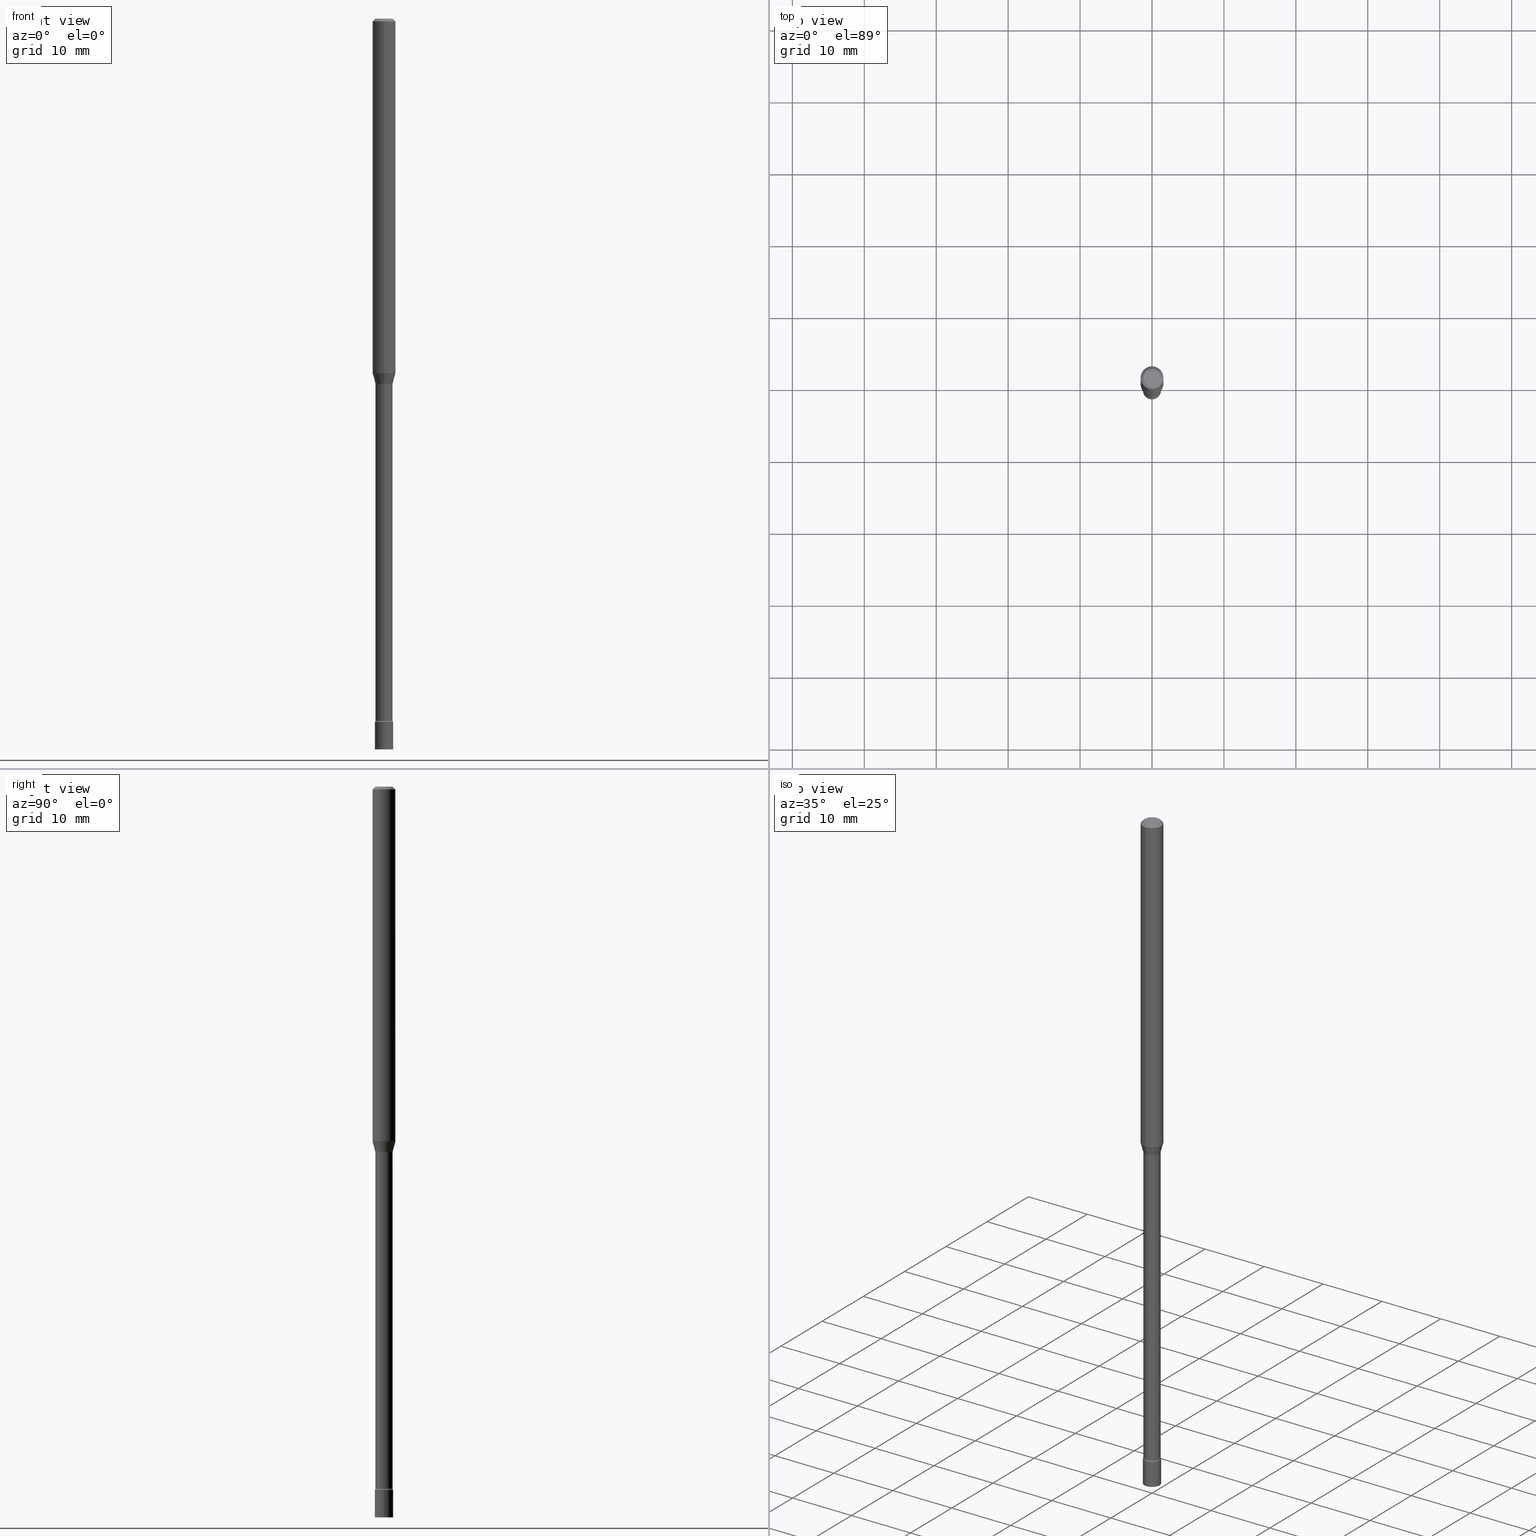
[diagram: canonical four-view strip — front | top / right | iso, engineering-drawing reading convention]
A machine part, canonical four-view strip (front | top / right | iso — engineering-drawing reading convention). The complete STEP part file that produces these views, byte-faithful:
ISO-10303-21;
HEADER;
FILE_DESCRIPTION (( 'STEP AP203' ),
    '1' );
FILE_NAME ('03666.STEP',
    '2024-03-08T22:27:52',
    ( '' ),
    ( '' ),
    'SwSTEP 2.0',
    'SolidWorks 2023',
    '' );
FILE_SCHEMA (( 'CONFIG_CONTROL_DESIGN' ));
ENDSEC;

DATA;
#1 = DIRECTION ( 'NONE',  ( -2.445449410952095360E-29, 3.491509113920768834E-15, 1.000000000000000000 ) ) ;
#2 = EDGE_CURVE ( 'NONE', #498, #446, #419, .T. ) ;
#3 = ORIENTED_EDGE ( 'NONE', *, *, #408, .T. ) ;
#4 = DIRECTION ( 'NONE',  ( -6.982962677686267499E-15, -1.000000000000000000, 0.000000000000000000 ) ) ;
#5 = LINE ( 'NONE', #363, #327 ) ;
#6 = AXIS2_PLACEMENT_3D ( 'NONE', #278, #150, #358 ) ;
#7 = CIRCLE ( 'NONE', #103, 0.01500000000000002720 ) ;
#8 = ORIENTED_EDGE ( 'NONE', *, *, #252, .T. ) ;
#9 = PLANE ( 'NONE',  #434 ) ;
#10 = APPROVAL_ROLE ( '' ) ;
#11 = EDGE_LOOP ( 'NONE', ( #416, #277, #3, #82 ) ) ;
#12 = EDGE_CURVE ( 'NONE', #293, #97, #331, .T. ) ;
#13 = ORIENTED_EDGE ( 'NONE', *, *, #423, .F. ) ;
#14 = DATE_TIME_ROLE ( 'classification_date' ) ;
#15 = SECURITY_CLASSIFICATION ( '', '', #202 ) ;
#16 = DIRECTION ( 'NONE',  ( -2.445449410952095360E-29, 3.491509113920768834E-15, 1.000000000000000000 ) ) ;
#17 = DATE_AND_TIME ( #490, #517 ) ;
#18 = EDGE_CURVE ( 'NONE', #374, #164, #30, .T. ) ;
#19 = CARTESIAN_POINT ( 'NONE',  ( -3.317683261006516906E-16, -0.04751111260567088962, -1.998092501787273267 ) ) ;
#20 = TOROIDAL_SURFACE ( 'NONE', #450, 0.06200000000000000649, 0.01500000000000002547 ) ;
#21 = CC_DESIGN_SECURITY_CLASSIFICATION ( #15, ( #464 ) ) ;
#22 = DIRECTION ( 'NONE',  ( 1.000000000000000000, -7.105427357601001070E-15, 4.926315848688681466E-29 ) ) ;
#23 = ORIENTED_EDGE ( 'NONE', *, *, #223, .F. ) ;
#24 = DIRECTION ( 'NONE',  ( 1.000000000000000000, -6.982962677686265922E-15, 4.876176775795935793E-29 ) ) ;
#25 = LINE ( 'NONE', #144, #249 ) ;
#26 = CARTESIAN_POINT ( 'NONE',  ( 0.000000000000000000, 0.000000000000000000, 0.000000000000000000 ) ) ;
#27 = EDGE_CURVE ( 'NONE', #34, #225, #196, .T. ) ;
#28 = DIRECTION ( 'NONE',  ( -6.982962677686265922E-15, -1.000000000000000000, 5.749913744050256141E-15 ) ) ;
#29 = EDGE_CURVE ( 'NONE', #225, #491, #453, .T. ) ;
#30 = CIRCLE ( 'NONE', #505, 0.05000000000000000278 ) ;
#31 = APPROVAL_PERSON_ORGANIZATION ( #137, #506, #373 ) ;
#32 = CARTESIAN_POINT ( 'NONE',  ( -3.281992458512551448E-16, -0.04700000000000009726, 1.641009283542764807E-16 ) ) ;
#33 = DIRECTION ( 'NONE',  ( -1.000000000000000000, 6.982962677686265922E-15, -4.876176775795935793E-29 ) ) ;
#34 = VERTEX_POINT ( 'NONE', #174 ) ;
#35 = CARTESIAN_POINT ( 'NONE',  ( 3.668174116428150344E-31, -5.237263670881164147E-17, -0.01500000000000003067 ) ) ;
#36 = DIRECTION ( 'NONE',  ( -2.445449410952095360E-29, 3.491509113920768834E-15, 1.000000000000000000 ) ) ;
#37 = AXIS2_PLACEMENT_3D ( 'NONE', #438, #40, #155 ) ;
#38 = DIRECTION ( 'NONE',  ( 2.445449410952095360E-29, -3.491509113920768834E-15, -1.000000000000000000 ) ) ;
#39 = DIRECTION ( 'NONE',  ( -2.445449410952095360E-29, 3.491509113920768834E-15, 1.000000000000000000 ) ) ;
#40 = DIRECTION ( 'NONE',  ( -2.445449410952095360E-29, 3.491509113920768834E-15, 1.000000000000000000 ) ) ;
#41 = ORIENTED_EDGE ( 'NONE', *, *, #212, .F. ) ;
#42 =( NAMED_UNIT ( * ) SI_UNIT ( $, .STERADIAN. ) SOLID_ANGLE_UNIT ( ) );
#43 = DIRECTION ( 'NONE',  ( -2.445468806185136597E-29, 3.491481338843145583E-15, 1.000000000000000000 ) ) ;
#44 = PLANE ( 'NONE',  #161 ) ;
#45 = AXIS2_PLACEMENT_3D ( 'NONE', #501, #229, #33 ) ;
#46 = AXIS2_PLACEMENT_3D ( 'NONE', #480, #237, #158 ) ;
#47 = DATE_AND_TIME ( #412, #170 ) ;
#48 = VERTEX_POINT ( 'NONE', #222 ) ;
#49 = DIRECTION ( 'NONE',  ( 1.000000000000000000, 0.000000000000000000, 0.000000000000000000 ) ) ;
#50 = APPROVAL ( #213, 'UNSPECIFIED' ) ;
#51 = AXIS2_PLACEMENT_3D ( 'NONE', #35, #194, #359 ) ;
#52 = CARTESIAN_POINT ( 'NONE',  ( 9.781875224740546387E-29, -1.396592535537258233E-14, -4.000000000000000000 ) ) ;
#53 = CC_DESIGN_PERSON_AND_ORGANIZATION_ASSIGNMENT ( #493, #245, ( #464 ) ) ;
#54 = CARTESIAN_POINT ( 'NONE',  ( 3.375867592983950199E-16, 0.04751111260565694244, -1.998092501787273934 ) ) ;
#55 = CARTESIAN_POINT ( 'NONE',  ( 0.000000000000000000, 0.000000000000000000, 0.000000000000000000 ) ) ;
#56 = ORIENTED_EDGE ( 'NONE', *, *, #18, .F. ) ;
#57 = VERTEX_POINT ( 'NONE', #19 ) ;
#58 = AXIS2_PLACEMENT_3D ( 'NONE', #177, #346, #499 ) ;
#59 = CIRCLE ( 'NONE', #370, 0.04749999999999999362 ) ;
#60 = PRODUCT ( '03666', '03666', '', ( #131 ) ) ;
#61 = DIRECTION ( 'NONE',  ( -2.445449410952095360E-29, 3.491509113920768834E-15, 1.000000000000000000 ) ) ;
#62 = ORIENTED_EDGE ( 'NONE', *, *, #101, .F. ) ;
#63 = DIRECTION ( 'NONE',  ( -2.445449410952095360E-29, 3.491509113920768834E-15, 1.000000000000000000 ) ) ;
#64 = CARTESIAN_POINT ( 'NONE',  ( -3.491481338842193625E-16, -0.05000000000001347811, -3.850000000000000089 ) ) ;
#65 = FACE_OUTER_BOUND ( 'NONE', #211, .T. ) ;
#66 = EDGE_LOOP ( 'NONE', ( #98, #226, #288, #442 ) ) ;
#67 = CARTESIAN_POINT ( 'NONE',  ( 0.05000000000000000278, -1.379135128843042409E-14, -3.850000000000000089 ) ) ;
#68 = AXIS2_PLACEMENT_3D ( 'NONE', #465, #63, #306 ) ;
#69 = AXIS2_PLACEMENT_3D ( 'NONE', #443, #201, #240 ) ;
#70 = FACE_OUTER_BOUND ( 'NONE', #214, .T. ) ;
#71 = EDGE_CURVE ( 'NONE', #129, #429, #146, .T. ) ;
#72 = EDGE_LOOP ( 'NONE', ( #62, #330, #386, #90 ) ) ;
#73 = CARTESIAN_POINT ( 'NONE',  ( 9.415054903812776570E-29, -1.344220315454611233E-14, -3.850000000000000089 ) ) ;
#74 = DIRECTION ( 'NONE',  ( -1.000000000000000000, 6.982962677686265922E-15, -4.883557194083112340E-29 ) ) ;
#75 = CONICAL_SURFACE ( 'NONE', #206, 0.04751111260566391603, 0.2617993877991485197 ) ;
#76 = CARTESIAN_POINT ( 'NONE',  ( 9.393045684557110628E-29, -1.341077982249652369E-14, -3.841000000000000192 ) ) ;
#77 = TOROIDAL_SURFACE ( 'NONE', #301, 0.06200000000000022854, 0.01500000000000003240 ) ;
#78 = EDGE_CURVE ( 'NONE', #498, #97, #248, .T. ) ;
#79 = FACE_OUTER_BOUND ( 'NONE', #182, .T. ) ;
#80 = ORIENTED_EDGE ( 'NONE', *, *, #78, .F. ) ;
#81 = CALENDAR_DATE ( 2024, 8, 3 ) ;
#82 = ORIENTED_EDGE ( 'NONE', *, *, #188, .T. ) ;
#83 = PRODUCT_DEFINITION_SHAPE ( 'NONE', 'NONE',  #209 ) ;
#84 = VECTOR ( 'NONE', #243, 39.37007874015748143 ) ;
#85 = ADVANCED_FACE ( 'NONE', ( #268 ), #462, .T. ) ;
#86 = ORIENTED_EDGE ( 'NONE', *, *, #425, .F. ) ;
#87 = PERSON_AND_ORGANIZATION ( #349, #96 ) ;
#88 = EDGE_LOOP ( 'NONE', ( #484, #125, #168, #140 ) ) ;
#89 = ADVANCED_FACE ( 'NONE', ( #65 ), #75, .T. ) ;
#90 = ORIENTED_EDGE ( 'NONE', *, *, #461, .F. ) ;
#91 = ORIENTED_EDGE ( 'NONE', *, *, #402, .F. ) ;
#92 = APPROVAL_STATUS ( 'not_yet_approved' ) ;
#93 = VECTOR ( 'NONE', #511, 39.37007874015748143 ) ;
#94 = AXIS2_PLACEMENT_3D ( 'NONE', #320, #43, #398 ) ;
#95 = ADVANCED_FACE ( 'NONE', ( #70 ), #334, .T. ) ;
#96 = ORGANIZATION ( 'UNSPECIFIED', 'UNSPECIFIED', '' ) ;
#97 = VERTEX_POINT ( 'NONE', #431 ) ;
#98 = ORIENTED_EDGE ( 'NONE', *, *, #78, .T. ) ;
#99 = DIRECTION ( 'NONE',  ( -6.982962677686265133E-15, -1.000000000000000000, 0.000000000000000000 ) ) ;
#100 = FACE_OUTER_BOUND ( 'NONE', #11, .T. ) ;
#101 = EDGE_CURVE ( 'NONE', #293, #57, #323, .T. ) ;
#102 = AXIS2_PLACEMENT_3D ( 'NONE', #104, #348, #231 ) ;
#103 = AXIS2_PLACEMENT_3D ( 'NONE', #282, #405, #4 ) ;
#104 = CARTESIAN_POINT ( 'NONE',  ( 4.886234131523486908E-29, -6.976358180447015879E-15, -1.998092501787273711 ) ) ;
#105 = ADVANCED_FACE ( 'NONE', ( #148 ), #503, .T. ) ;
#106 = LINE ( 'NONE', #357, #345 ) ;
#107 = DIRECTION ( 'NONE',  ( -6.982962677686265922E-15, -1.000000000000000000, 3.483106191921935554E-15 ) ) ;
#108 = DIRECTION ( 'NONE',  ( 1.000000000000000000, -6.982962677686267499E-15, 4.876176775795936353E-29 ) ) ;
#109 = MANIFOLD_SOLID_BREP ( 'Body-Move/Copy2[2]', #353 ) ;
#110 = AXIS2_PLACEMENT_3D ( 'NONE', #145, #352, #436 ) ;
#111 = DIRECTION ( 'NONE',  ( 6.982962677686265922E-15, 1.000000000000000000, -3.483106191921935554E-15 ) ) ;
#112 = CIRCLE ( 'NONE', #292, 0.04700000000000000705 ) ;
#113 = ORIENTED_EDGE ( 'NONE', *, *, #216, .F. ) ;
#114 = CC_DESIGN_APPROVAL ( #50, ( #15 ) ) ;
#115 = PLANE ( 'NONE',  #448 ) ;
#116 = CARTESIAN_POINT ( 'NONE',  ( -0.05000000000000000278, -1.334879288707929850E-14, -4.000000000000000000 ) ) ;
#117 = APPLICATION_CONTEXT ( 'configuration controlled 3d designs of mechanical parts and assemblies' ) ;
#118 = CYLINDRICAL_SURFACE ( 'NONE', #46, 0.06250000000000000000 ) ;
#119 = DIRECTION ( 'NONE',  ( -2.445449410952095360E-29, 3.491509113920768834E-15, 1.000000000000000000 ) ) ;
#120 = ADVANCED_FACE ( 'NONE', ( #142 ), #388, .T. ) ;
#121 =( LENGTH_UNIT ( ) NAMED_UNIT ( * ) SI_UNIT ( $, .METRE. ) );
#122 = CLOSED_SHELL ( 'NONE', ( #85, #203, #269, #105 ) ) ;
#123 = CARTESIAN_POINT ( 'NONE',  ( 9.393045684557110628E-29, -1.341077982249652369E-14, -3.841000000000000192 ) ) ;
#124 = CIRCLE ( 'NONE', #51, 0.06250000000000000000 ) ;
#125 = ORIENTED_EDGE ( 'NONE', *, *, #402, .T. ) ;
#126 = VERTEX_POINT ( 'NONE', #67 ) ;
#127 = DIRECTION ( 'NONE',  ( -6.982962677686265922E-15, -1.000000000000000000, 3.491509113920768834E-15 ) ) ;
#128 = APPROVAL_ROLE ( '' ) ;
#129 = VERTEX_POINT ( 'NONE', #466 ) ;
#130 = DIRECTION ( 'NONE',  ( -2.445449410952095360E-29, 3.491509113920768834E-15, 1.000000000000000000 ) ) ;
#131 = MECHANICAL_CONTEXT ( 'NONE', #117, 'mechanical' ) ;
#132 = DESIGN_CONTEXT ( 'detailed design', #372, 'design' ) ;
#133 = AXIS2_PLACEMENT_3D ( 'NONE', #228, #22, #504 ) ;
#134 = APPROVAL_DATE_TIME ( #339, #341 ) ;
#135 = PERSON_AND_ORGANIZATION ( #349, #96 ) ;
#136 = DIRECTION ( 'NONE',  ( 1.000000000000000000, -6.982962677686254878E-15, 0.000000000000000000 ) ) ;
#137 = PERSON_AND_ORGANIZATION ( #349, #96 ) ;
#138 = ORIENTED_EDGE ( 'NONE', *, *, #514, .F. ) ;
#139 = CIRCLE ( 'NONE', #472, 0.01500000000000002720 ) ;
#140 = ORIENTED_EDGE ( 'NONE', *, *, #497, .F. ) ;
#141 = EDGE_LOOP ( 'NONE', ( #176, #56 ) ) ;
#142 = FACE_OUTER_BOUND ( 'NONE', #400, .T. ) ;
#143 = CC_DESIGN_PERSON_AND_ORGANIZATION_ASSIGNMENT ( #487, #410, ( #60 ) ) ;
#144 = CARTESIAN_POINT ( 'NONE',  ( -3.317683261006516906E-16, -0.04751111260567088962, -1.998092501787273267 ) ) ;
#145 = CARTESIAN_POINT ( 'NONE',  ( 0.000000000000000000, 0.000000000000000000, 0.000000000000000000 ) ) ;
#146 = CIRCLE ( 'NONE', #58, 0.05000000000000000278 ) ;
#147 = CIRCLE ( 'NONE', #94, 0.05000000000000000278 ) ;
#148 = FACE_OUTER_BOUND ( 'NONE', #141, .T. ) ;
#149 = ADVANCED_FACE ( 'NONE', ( #100 ), #343, .T. ) ;
#150 = DIRECTION ( 'NONE',  ( -2.445449410952095360E-29, 3.491509113920768834E-15, 1.000000000000000000 ) ) ;
#151 = CC_DESIGN_DATE_AND_TIME_ASSIGNMENT ( #47, #380, ( #209 ) ) ;
#152 = CARTESIAN_POINT ( 'NONE',  ( 4.886234131523486908E-29, -6.976358180447015879E-15, -1.998092501787273711 ) ) ;
#153 = CIRCLE ( 'NONE', #470, 0.05000000000000000278 ) ;
#154 = AXIS2_PLACEMENT_3D ( 'NONE', #437, #74, #362 ) ;
#155 = DIRECTION ( 'NONE',  ( -6.982962677686265922E-15, -1.000000000000000000, 5.812442539711197800E-15 ) ) ;
#156 =( NAMED_UNIT ( * ) PLANE_ANGLE_UNIT ( ) SI_UNIT ( $, .RADIAN. ) );
#157 = DIRECTION ( 'NONE',  ( -2.445449410952095079E-29, 3.491509113920768834E-15, 1.000000000000000000 ) ) ;
#158 = DIRECTION ( 'NONE',  ( -6.982962677686265922E-15, -1.000000000000000000, 3.491509113920768834E-15 ) ) ;
#159 = DIRECTION ( 'NONE',  ( -6.982962677686265133E-15, -1.000000000000000000, 0.000000000000000000 ) ) ;
#160 = ORIENTED_EDGE ( 'NONE', *, *, #444, .T. ) ;
#161 = AXIS2_PLACEMENT_3D ( 'NONE', #403, #238, #406 ) ;
#162 = FACE_OUTER_BOUND ( 'NONE', #72, .T. ) ;
#163 = CALENDAR_DATE ( 2024, 8, 3 ) ;
#164 = VERTEX_POINT ( 'NONE', #311 ) ;
#165 = CARTESIAN_POINT ( 'NONE',  ( 3.491481338844074565E-16, 0.04999999999998656214, -3.850000000000000089 ) ) ;
#166 = COORDINATED_UNIVERSAL_TIME_OFFSET ( 5, 0, .BEHIND. ) ;
#167 = CARTESIAN_POINT ( 'NONE',  ( -4.364351673553916201E-16, -0.06250000000000000000, 2.182193196200480521E-16 ) ) ;
#168 = ORIENTED_EDGE ( 'NONE', *, *, #71, .T. ) ;
#169 = AXIS2_PLACEMENT_3D ( 'NONE', #512, #187, #304 ) ;
#170 = LOCAL_TIME ( 17, 27, 52.00000000000000000, #166 ) ;
#171 = CC_DESIGN_PERSON_AND_ORGANIZATION_ASSIGNMENT ( #87, #445, ( #209 ) ) ;
#172 = ADVANCED_FACE ( 'NONE', ( #273 ), #471, .T. ) ;
#173 = EDGE_LOOP ( 'NONE', ( #86, #421, #368, #200 ) ) ;
#174 = CARTESIAN_POINT ( 'NONE',  ( -3.281992458511619113E-16, -0.04700000000001360034, -3.841000000000000192 ) ) ;
#175 = APPROVAL_DATE_TIME ( #17, #50 ) ;
#176 = ORIENTED_EDGE ( 'NONE', *, *, #252, .F. ) ;
#177 = CARTESIAN_POINT ( 'NONE',  ( 9.414980232165568130E-29, -1.344231008859496111E-14, -3.850000000000000089 ) ) ;
#178 = CIRCLE ( 'NONE', #68, 0.04700000000000019440 ) ;
#179 = AXIS2_PLACEMENT_3D ( 'NONE', #76, #130, #241 ) ;
#180 = EDGE_CURVE ( 'NONE', #126, #322, #153, .T. ) ;
#181 = LINE ( 'NONE', #463, #84 ) ;
#182 = EDGE_LOOP ( 'NONE', ( #91, #383, #204, #258 ) ) ;
#183 = DIRECTION ( 'NONE',  ( -6.982962677686265922E-15, -1.000000000000000000, 4.370956789862821150E-15 ) ) ;
#184 = LINE ( 'NONE', #502, #275 ) ;
#185 = DIRECTION ( 'NONE',  ( -2.445449410952095360E-29, 3.491509113920768834E-15, 1.000000000000000000 ) ) ;
#186 = DIRECTION ( 'NONE',  ( -2.445449410952095360E-29, 3.491509113920768834E-15, 1.000000000000000000 ) ) ;
#187 = DIRECTION ( 'NONE',  ( 2.445449410952095360E-29, -3.491509113920768834E-15, -1.000000000000000000 ) ) ;
#188 = EDGE_CURVE ( 'NONE', #255, #446, #455, .T. ) ;
#189 = EDGE_CURVE ( 'NONE', #225, #34, #178, .T. ) ;
#190 = CARTESIAN_POINT ( 'NONE',  ( 4.886234131523486908E-29, -6.976358180447015879E-15, -1.998092501787273711 ) ) ;
#191 = CYLINDRICAL_SURFACE ( 'NONE', #284, 0.04700000000000009726 ) ;
#192 = FACE_OUTER_BOUND ( 'NONE', #260, .T. ) ;
#193 = ORIENTED_EDGE ( 'NONE', *, *, #12, .F. ) ;
#194 = DIRECTION ( 'NONE',  ( -2.445449410952095360E-29, 3.491509113920768834E-15, 1.000000000000000000 ) ) ;
#195 = ORIENTED_EDGE ( 'NONE', *, *, #29, .T. ) ;
#196 = CIRCLE ( 'NONE', #266, 0.04700000000000019440 ) ;
#197 = CARTESIAN_POINT ( 'NONE',  ( 3.908379845742525825E-16, 0.04751111260565694244, -1.998092501787273934 ) ) ;
#198 = LINE ( 'NONE', #235, #308 ) ;
#199 = FACE_OUTER_BOUND ( 'NONE', #263, .T. ) ;
#200 = ORIENTED_EDGE ( 'NONE', *, *, #408, .F. ) ;
#201 = DIRECTION ( 'NONE',  ( -2.445468806185136597E-29, 3.491481338843145583E-15, 1.000000000000000000 ) ) ;
#202 = SECURITY_CLASSIFICATION_LEVEL ( 'unclassified' ) ;
#203 = ADVANCED_FACE ( 'NONE', ( #192 ), #115, .T. ) ;
#204 = ORIENTED_EDGE ( 'NONE', *, *, #497, .T. ) ;
#205 = CARTESIAN_POINT ( 'NONE',  ( 7.070428012588601954E-46, -1.009485771192565481E-31, -2.891259161168190881E-17 ) ) ;
#206 = AXIS2_PLACEMENT_3D ( 'NONE', #396, #467, #28 ) ;
#207 = AXIS2_PLACEMENT_3D ( 'NONE', #485, #399, #244 ) ;
#208 = DIRECTION ( 'NONE',  ( -6.982962677686265922E-15, -1.000000000000000000, 3.491509113920768834E-15 ) ) ;
#209 = PRODUCT_DEFINITION ( 'UNKNOWN', '', #464, #132 ) ;
#210 = CARTESIAN_POINT ( 'NONE',  ( 0.000000000000000000, 0.000000000000000000, 0.000000000000000000 ) ) ;
#211 = EDGE_LOOP ( 'NONE', ( #193, #302, #409, #113 ) ) ;
#212 = EDGE_CURVE ( 'NONE', #34, #247, #356, .T. ) ;
#213 = APPROVAL_STATUS ( 'not_yet_approved' ) ;
#214 = EDGE_LOOP ( 'NONE', ( #469, #338, #80, #300 ) ) ;
#215 = COORDINATED_UNIVERSAL_TIME_OFFSET ( 5, 0, .BEHIND. ) ;
#216 = EDGE_CURVE ( 'NONE', #97, #498, #227, .T. ) ;
#217 = CIRCLE ( 'NONE', #369, 0.04751111260566391603 ) ;
#218 = CIRCLE ( 'NONE', #133, 0.01500000000000002720 ) ;
#219 = EDGE_LOOP ( 'NONE', ( #384, #195, #13, #41 ) ) ;
#220 = CARTESIAN_POINT ( 'NONE',  ( 9.392971187466999511E-29, -1.341088650656967574E-14, -3.841000000000000192 ) ) ;
#221 = ORIENTED_EDGE ( 'NONE', *, *, #317, .F. ) ;
#222 = CARTESIAN_POINT ( 'NONE',  ( -3.773273898774340269E-16, -0.04749999999999999362, 1.369340912995546313E-16 ) ) ;
#223 = EDGE_CURVE ( 'NONE', #57, #293, #217, .T. ) ;
#224 = DIRECTION ( 'NONE',  ( -2.445449410952095360E-29, 3.491509113920768834E-15, 1.000000000000000000 ) ) ;
#225 = VERTEX_POINT ( 'NONE', #439 ) ;
#226 = ORIENTED_EDGE ( 'NONE', *, *, #295, .T. ) ;
#227 = CIRCLE ( 'NONE', #6, 0.06250000000000000000 ) ;
#228 = CARTESIAN_POINT ( 'NONE',  ( 4.405364961713575643E-16, 0.06199999999998681566, -3.841000000000000192 ) ) ;
#229 = DIRECTION ( 'NONE',  ( 2.438088387897960049E-29, -3.491481338843145188E-15, -1.000000000000000000 ) ) ;
#230 = DIRECTION ( 'NONE',  ( -2.445449410952095360E-29, 3.491509113920768834E-15, 1.000000000000000000 ) ) ;
#231 = DIRECTION ( 'NONE',  ( -6.982962677686265922E-15, -1.000000000000000000, 5.749913744050256141E-15 ) ) ;
#232 = VECTOR ( 'NONE', #264, 39.37007874015748143 ) ;
#233 = AXIS2_PLACEMENT_3D ( 'NONE', #401, #38, #111 ) ;
#234 = DIRECTION ( 'NONE',  ( -2.445449410952095360E-29, 3.491509113920768834E-15, 1.000000000000000000 ) ) ;
#235 = CARTESIAN_POINT ( 'NONE',  ( 0.05000000000000000278, -3.491481338843133848E-16, 2.438088387897968247E-30 ) ) ;
#236 = ADVANCED_FACE ( 'NONE', ( #79 ), #515, .F. ) ;
#237 = DIRECTION ( 'NONE',  ( -2.445449410952095360E-29, 3.491509113920768834E-15, 1.000000000000000000 ) ) ;
#238 = DIRECTION ( 'NONE',  ( 2.445449410952095079E-29, -3.491509113920768834E-15, -1.000000000000000000 ) ) ;
#239 = AXIS2_PLACEMENT_3D ( 'NONE', #516, #365, #159 ) ;
#240 = DIRECTION ( 'NONE',  ( 1.000000000000000000, -6.982962677686267499E-15, 4.876176775795936353E-29 ) ) ;
#241 = DIRECTION ( 'NONE',  ( -6.982962677686265922E-15, -1.000000000000000000, 3.491509113920768834E-15 ) ) ;
#242 = ORIENTED_EDGE ( 'NONE', *, *, #180, .F. ) ;
#243 = DIRECTION ( 'NONE',  ( -2.445468806185136877E-29, 3.491481338843145188E-15, 1.000000000000000000 ) ) ;
#244 = DIRECTION ( 'NONE',  ( 1.000000000000000000, -6.982962677686254878E-15, 0.000000000000000000 ) ) ;
#245 = PERSON_AND_ORGANIZATION_ROLE ( 'design_supplier' ) ;
#246 = ORIENTED_EDGE ( 'NONE', *, *, #189, .T. ) ;
#247 = VERTEX_POINT ( 'NONE', #289 ) ;
#248 = CIRCLE ( 'NONE', #385, 0.06250000000000000000 ) ;
#249 = VECTOR ( 'NONE', #305, 39.37007874015748143 ) ;
#250 = PERSON_AND_ORGANIZATION_ROLE ( 'creator' ) ;
#251 = ORIENTED_EDGE ( 'NONE', *, *, #295, .F. ) ;
#252 = EDGE_CURVE ( 'NONE', #164, #374, #377, .T. ) ;
#253 = ORIENTED_EDGE ( 'NONE', *, *, #444, .F. ) ;
#254 = APPLICATION_PROTOCOL_DEFINITION ( 'international standard', 'config_control_design', 1994, #372 ) ;
#255 = VERTEX_POINT ( 'NONE', #321 ) ;
#256 =( GEOMETRIC_REPRESENTATION_CONTEXT ( 3 ) GLOBAL_UNCERTAINTY_ASSIGNED_CONTEXT ( ( #449 ) ) GLOBAL_UNIT_ASSIGNED_CONTEXT ( ( #276, #156, #42 ) ) REPRESENTATION_CONTEXT ( 'NONE', 'WORKASPACE' ) );
#257 = PERSON_AND_ORGANIZATION ( #349, #96 ) ;
#258 = ORIENTED_EDGE ( 'NONE', *, *, #317, .T. ) ;
#259 = EDGE_LOOP ( 'NONE', ( #253, #495, #261, #138 ) ) ;
#260 = EDGE_LOOP ( 'NONE', ( #459, #381 ) ) ;
#261 = ORIENTED_EDGE ( 'NONE', *, *, #452, .T. ) ;
#262 = CARTESIAN_POINT ( 'NONE',  ( 4.895728064744323298E-29, -6.989913216269490418E-15, -2.001974787463811190 ) ) ;
#263 = EDGE_LOOP ( 'NONE', ( #404, #435 ) ) ;
#264 = DIRECTION ( 'NONE',  ( -2.445449410952095360E-29, 3.491509113920768834E-15, 1.000000000000000000 ) ) ;
#265 = DIRECTION ( 'NONE',  ( -2.445449410952095360E-29, 3.491509113920768834E-15, 1.000000000000000000 ) ) ;
#266 = AXIS2_PLACEMENT_3D ( 'NONE', #220, #297, #99 ) ;
#267 = DIRECTION ( 'NONE',  ( -6.982962677686265922E-15, -1.000000000000000000, 5.812442539711197800E-15 ) ) ;
#268 = FACE_OUTER_BOUND ( 'NONE', #460, .T. ) ;
#269 = ADVANCED_FACE ( 'NONE', ( #366 ), #475, .T. ) ;
#270 = DIRECTION ( 'NONE',  ( -4.851104656540964275E-15, -0.7071067811865500152, -0.7071067811865450192 ) ) ;
#271 = CARTESIAN_POINT ( 'NONE',  ( 9.415054903812776570E-29, -1.344220315454611233E-14, -3.850000000000000089 ) ) ;
#272 = CARTESIAN_POINT ( 'NONE',  ( 4.405364961713110708E-16, 0.06199999999999301209, -2.001974787463811634 ) ) ;
#273 = FACE_OUTER_BOUND ( 'NONE', #219, .T. ) ;
#274 = AXIS2_PLACEMENT_3D ( 'NONE', #26, #185, #391 ) ;
#275 = VECTOR ( 'NONE', #270, 39.37007874015748143 ) ;
#276 =( CONVERSION_BASED_UNIT ( 'INCH', #313 ) LENGTH_UNIT ( ) NAMED_UNIT ( #468 ) );
#277 = ORIENTED_EDGE ( 'NONE', *, *, #518, .F. ) ;
#278 = CARTESIAN_POINT ( 'NONE',  ( 4.749437429444495691E-29, -6.781045642013784407E-15, -1.942153212482682578 ) ) ;
#279 = EDGE_CURVE ( 'NONE', #491, #247, #393, .T. ) ;
#280 = CARTESIAN_POINT ( 'NONE',  ( 4.895766893511868567E-29, -6.989857611264368889E-15, -2.001974787463811190 ) ) ;
#281 = DIRECTION ( 'NONE',  ( -6.982962677686265922E-15, -1.000000000000000000, 3.491509113920768834E-15 ) ) ;
#282 = CARTESIAN_POINT ( 'NONE',  ( -4.329436860164561683E-16, -0.06200000000001364142, -3.841000000000000192 ) ) ;
#283 = ADVANCED_FACE ( 'NONE', ( #199 ), #44, .F. ) ;
#284 = AXIS2_PLACEMENT_3D ( 'NONE', #55, #61, #510 ) ;
#285 = ORIENTED_EDGE ( 'NONE', *, *, #423, .T. ) ;
#286 = FACE_OUTER_BOUND ( 'NONE', #427, .T. ) ;
#287 = DATE_AND_TIME ( #81, #441 ) ;
#288 = ORIENTED_EDGE ( 'NONE', *, *, #332, .F. ) ;
#289 = CARTESIAN_POINT ( 'NONE',  ( -3.281992458512055945E-16, -0.04700000000000699452, -2.001974787463811190 ) ) ;
#290 = APPROVAL_STATUS ( 'not_yet_approved' ) ;
#291 = MANIFOLD_SOLID_BREP ( 'Body-Move/Copy2[1]', #122 ) ;
#292 = AXIS2_PLACEMENT_3D ( 'NONE', #262, #186, #267 ) ;
#293 = VERTEX_POINT ( 'NONE', #197 ) ;
#294 = COORDINATED_UNIVERSAL_TIME_OFFSET ( 5, 0, .BEHIND. ) ;
#295 = EDGE_CURVE ( 'NONE', #97, #255, #5, .T. ) ;
#296 = VERTEX_POINT ( 'NONE', #397 ) ;
#297 = DIRECTION ( 'NONE',  ( -2.445449410952095360E-29, 3.491509113920768834E-15, 1.000000000000000000 ) ) ;
#298 = DIRECTION ( 'NONE',  ( 0.000000000000000000, 0.000000000000000000, 1.000000000000000000 ) ) ;
#299 = ADVANCED_FACE ( 'NONE', ( #476 ), #77, .F. ) ;
#300 = ORIENTED_EDGE ( 'NONE', *, *, #430, .F. ) ;
#301 = AXIS2_PLACEMENT_3D ( 'NONE', #123, #1, #208 ) ;
#302 = ORIENTED_EDGE ( 'NONE', *, *, #101, .T. ) ;
#303 = ORIENTED_EDGE ( 'NONE', *, *, #461, .T. ) ;
#304 = DIRECTION ( 'NONE',  ( 6.982962677686265922E-15, 1.000000000000000000, -3.483106191921935554E-15 ) ) ;
#305 = DIRECTION ( 'NONE',  ( -1.807323732225318701E-15, -0.2588190451025165206, 0.9659258262890694224 ) ) ;
#306 = DIRECTION ( 'NONE',  ( -6.982962677686265133E-15, -1.000000000000000000, 0.000000000000000000 ) ) ;
#307 = VECTOR ( 'NONE', #16, 39.37007874015748143 ) ;
#308 = VECTOR ( 'NONE', #513, 39.37007874015748143 ) ;
#309 = ADVANCED_FACE ( 'NONE', ( #162 ), #20, .F. ) ;
#310 = DIRECTION ( 'NONE',  ( 7.105427357600997914E-15, 1.000000000000000000, 0.000000000000000000 ) ) ;
#311 = CARTESIAN_POINT ( 'NONE',  ( 0.05000000000000000278, -1.431507348925689409E-14, -4.000000000000000000 ) ) ;
#312 = CARTESIAN_POINT ( 'NONE',  ( 0.000000000000000000, 0.000000000000000000, 0.000000000000000000 ) ) ;
#313 = LENGTH_MEASURE_WITH_UNIT ( LENGTH_MEASURE( 0.02539999999999999897 ), #121 );
#314 = ORIENTED_EDGE ( 'NONE', *, *, #452, .F. ) ;
#315 = DIRECTION ( 'NONE',  ( -2.445449410952095360E-29, 3.491509113920768834E-15, 1.000000000000000000 ) ) ;
#316 = AXIS2_PLACEMENT_3D ( 'NONE', #420, #224, #426 ) ;
#317 = EDGE_CURVE ( 'NONE', #429, #129, #361, .T. ) ;
#318 = FACE_OUTER_BOUND ( 'NONE', #418, .T. ) ;
#319 = DIRECTION ( 'NONE',  ( -6.982962677686265922E-15, -1.000000000000000000, 3.491509113920768834E-15 ) ) ;
#320 = CARTESIAN_POINT ( 'NONE',  ( 9.415054903812776570E-29, -1.344220315454611233E-14, -3.850000000000000089 ) ) ;
#321 = CARTESIAN_POINT ( 'NONE',  ( 4.440892098501103423E-16, 0.06249999999999993755, -0.01500000000000024751 ) ) ;
#322 = VERTEX_POINT ( 'NONE', #328 ) ;
#323 = CIRCLE ( 'NONE', #102, 0.04751111260566391603 ) ;
#324 = ADVANCED_FACE ( 'NONE', ( #286 ), #9, .F. ) ;
#325 = CC_DESIGN_APPROVAL ( #506, ( #464 ) ) ;
#326 = FACE_OUTER_BOUND ( 'NONE', #173, .T. ) ;
#327 = VECTOR ( 'NONE', #39, 39.37007874015748143 ) ;
#328 = CARTESIAN_POINT ( 'NONE',  ( -0.05000000000000000278, -1.334879288707929850E-14, -3.850000000000000089 ) ) ;
#329 = DATE_AND_TIME ( #163, #394 ) ;
#330 = ORIENTED_EDGE ( 'NONE', *, *, #379, .T. ) ;
#331 = LINE ( 'NONE', #54, #413 ) ;
#332 = EDGE_CURVE ( 'NONE', #446, #255, #124, .T. ) ;
#333 = CC_DESIGN_PERSON_AND_ORGANIZATION_ASSIGNMENT ( #257, #250, ( #464 ) ) ;
#334 = CONICAL_SURFACE ( 'NONE', #477, 0.04751111260566391603, 0.2617993877991485197 ) ;
#335 = LOCAL_TIME ( 17, 27, 52.00000000000000000, #215 ) ;
#336 = ORIENTED_EDGE ( 'NONE', *, *, #188, .F. ) ;
#337 = COORDINATED_UNIVERSAL_TIME_OFFSET ( 5, 0, .BEHIND. ) ;
#338 = ORIENTED_EDGE ( 'NONE', *, *, #12, .T. ) ;
#339 = DATE_AND_TIME ( #447, #335 ) ;
#340 = ORIENTED_EDGE ( 'NONE', *, *, #2, .T. ) ;
#341 = APPROVAL ( #290, 'UNSPECIFIED' ) ;
#342 = SHAPE_DEFINITION_REPRESENTATION ( #83, #486 ) ;
#343 = CONICAL_SURFACE ( 'NONE', #169, 0.06250000000000000000, 0.7853981633974483900 ) ;
#344 = EDGE_LOOP ( 'NONE', ( #479, #246, #411, #347 ) ) ;
#345 = VECTOR ( 'NONE', #389, 39.37007874015748143 ) ;
#346 = DIRECTION ( 'NONE',  ( -2.445449410952095360E-29, 3.491509113920768834E-15, 1.000000000000000000 ) ) ;
#347 = ORIENTED_EDGE ( 'NONE', *, *, #279, .F. ) ;
#348 = DIRECTION ( 'NONE',  ( -2.445449410952095360E-29, 3.491509113920768834E-15, 1.000000000000000000 ) ) ;
#349 = PERSON ( 'UNSPECIFIED', 'UNSPECIFIED', 'UNSPECIFIED', ('UNSPECIFIED'), ('UNSPECIFIED'), ('UNSPECIFIED') ) ;
#350 = CARTESIAN_POINT ( 'NONE',  ( 3.668174116428150344E-31, -5.237263670881164147E-17, -0.01500000000000003067 ) ) ;
#351 = ADVANCED_FACE ( 'NONE', ( #318 ), #496, .F. ) ;
#352 = DIRECTION ( 'NONE',  ( -2.445449410952095360E-29, 3.491509113920768834E-15, 1.000000000000000000 ) ) ;
#353 = CLOSED_SHELL ( 'NONE', ( #309, #172, #299, #481, #509, #95, #89, #120, #149, #283, #324, #236, #375, #351 ) ) ;
#354 = CIRCLE ( 'NONE', #154, 0.01500000000000002720 ) ;
#355 = FACE_OUTER_BOUND ( 'NONE', #344, .T. ) ;
#356 = LINE ( 'NONE', #32, #93 ) ;
#357 = CARTESIAN_POINT ( 'NONE',  ( 4.364351673553919652E-16, 0.06249999999999995143, -0.01500000000000024751 ) ) ;
#358 = DIRECTION ( 'NONE',  ( -6.982962677686265922E-15, -1.000000000000000000, 4.370956789862821150E-15 ) ) ;
#359 = DIRECTION ( 'NONE',  ( -6.982962677686265922E-15, -1.000000000000000000, 3.483106191921935554E-15 ) ) ;
#360 = AXIS2_PLACEMENT_3D ( 'NONE', #312, #428, #108 ) ;
#361 = CIRCLE ( 'NONE', #239, 0.05000000000000000278 ) ;
#362 = DIRECTION ( 'NONE',  ( -6.982962677686267499E-15, -1.000000000000000000, 0.000000000000000000 ) ) ;
#363 = CARTESIAN_POINT ( 'NONE',  ( 4.440892098500625669E-16, 0.06250000000000000000, -2.182193196200480521E-16 ) ) ;
#364 = CARTESIAN_POINT ( 'NONE',  ( -4.364351673553438940E-16, -0.06250000000000674460, -1.942153212482682134 ) ) ;
#365 = DIRECTION ( 'NONE',  ( -2.445449410952095360E-29, 3.491509113920768834E-15, 1.000000000000000000 ) ) ;
#366 = FACE_OUTER_BOUND ( 'NONE', #259, .T. ) ;
#367 = COORDINATED_UNIVERSAL_TIME_OFFSET ( 5, 0, .BEHIND. ) ;
#368 = ORIENTED_EDGE ( 'NONE', *, *, #332, .T. ) ;
#369 = AXIS2_PLACEMENT_3D ( 'NONE', #152, #265, #424 ) ;
#370 = AXIS2_PLACEMENT_3D ( 'NONE', #205, #36, #371 ) ;
#371 = DIRECTION ( 'NONE',  ( -6.982962677686266711E-15, -1.000000000000000000, 3.491509113920768834E-15 ) ) ;
#372 = APPLICATION_CONTEXT ( 'configuration controlled 3d designs of mechanical parts and assemblies' ) ;
#373 = APPROVAL_ROLE ( '' ) ;
#374 = VERTEX_POINT ( 'NONE', #116 ) ;
#375 = ADVANCED_FACE ( 'NONE', ( #355 ), #191, .T. ) ;
#376 = APPROVAL_DATE_TIME ( #287, #506 ) ;
#377 = CIRCLE ( 'NONE', #207, 0.05000000000000000278 ) ;
#378 = APPROVAL_PERSON_ORGANIZATION ( #135, #50, #128 ) ;
#379 = EDGE_CURVE ( 'NONE', #293, #491, #139, .T. ) ;
#380 = DATE_TIME_ROLE ( 'creation_date' ) ;
#381 = ORIENTED_EDGE ( 'NONE', *, *, #514, .T. ) ;
#382 = CARTESIAN_POINT ( 'NONE',  ( 3.339550858072477291E-16, 0.04700000000000009726, -1.641009283542764807E-16 ) ) ;
#383 = ORIENTED_EDGE ( 'NONE', *, *, #27, .F. ) ;
#384 = ORIENTED_EDGE ( 'NONE', *, *, #27, .T. ) ;
#385 = AXIS2_PLACEMENT_3D ( 'NONE', #422, #315, #183 ) ;
#386 = ORIENTED_EDGE ( 'NONE', *, *, #279, .T. ) ;
#387 = CIRCLE ( 'NONE', #316, 0.04749999999999999362 ) ;
#388 = CYLINDRICAL_SURFACE ( 'NONE', #274, 0.06250000000000000000 ) ;
#389 = DIRECTION ( 'NONE',  ( 4.937700262164548042E-15, 0.7071067811865451302, -0.7071067811865499042 ) ) ;
#390 = DIRECTION ( 'NONE',  ( -6.982962677686265922E-15, -1.000000000000000000, 5.749913744050256141E-15 ) ) ;
#391 = DIRECTION ( 'NONE',  ( -6.982962677686265922E-15, -1.000000000000000000, 3.491509113920768834E-15 ) ) ;
#392 = DIRECTION ( 'NONE',  ( -2.438088387897960049E-29, 3.491481338843145188E-15, 1.000000000000000000 ) ) ;
#393 = CIRCLE ( 'NONE', #37, 0.04700000000000000705 ) ;
#394 = LOCAL_TIME ( 17, 27, 52.00000000000000000, #367 ) ;
#395 = CC_DESIGN_PERSON_AND_ORGANIZATION_ASSIGNMENT ( #407, #417, ( #15 ) ) ;
#396 = CARTESIAN_POINT ( 'NONE',  ( 4.886234131523486908E-29, -6.976358180447015879E-15, -1.998092501787273711 ) ) ;
#397 = CARTESIAN_POINT ( 'NONE',  ( 3.840629472727447874E-16, 0.04749999999999999362, -1.947592745229183872E-16 ) ) ;
#398 = DIRECTION ( 'NONE',  ( 1.000000000000000000, -6.982962677686254878E-15, 0.000000000000000000 ) ) ;
#399 = DIRECTION ( 'NONE',  ( -2.445468806185136597E-29, 3.491481338843145583E-15, 1.000000000000000000 ) ) ;
#400 = EDGE_LOOP ( 'NONE', ( #251, #457, #340, #336 ) ) ;
#401 = CARTESIAN_POINT ( 'NONE',  ( 3.668174116428150344E-31, -5.237263670881164147E-17, -0.01500000000000003067 ) ) ;
#402 = EDGE_CURVE ( 'NONE', #225, #129, #218, .T. ) ;
#403 = CARTESIAN_POINT ( 'NONE',  ( 3.316907271900976096E-16, 0.04749999999999999362, -1.803029787170774544E-16 ) ) ;
#404 = ORIENTED_EDGE ( 'NONE', *, *, #518, .T. ) ;
#405 = DIRECTION ( 'NONE',  ( -1.000000000000000000, 6.982962677686265922E-15, -4.883557194083112340E-29 ) ) ;
#406 = DIRECTION ( 'NONE',  ( 6.982962677686265922E-15, 1.000000000000000000, -3.491509113920768834E-15 ) ) ;
#407 = PERSON_AND_ORGANIZATION ( #349, #96 ) ;
#408 = EDGE_CURVE ( 'NONE', #296, #255, #106, .T. ) ;
#409 = ORIENTED_EDGE ( 'NONE', *, *, #430, .T. ) ;
#410 = PERSON_AND_ORGANIZATION_ROLE ( 'design_owner' ) ;
#411 = ORIENTED_EDGE ( 'NONE', *, *, #212, .T. ) ;
#412 = CALENDAR_DATE ( 2024, 8, 3 ) ;
#413 = VECTOR ( 'NONE', #458, 39.37007874015748143 ) ;
#414 = CONICAL_SURFACE ( 'NONE', #233, 0.06250000000000000000, 0.7853981633974483900 ) ;
#415 = EDGE_CURVE ( 'NONE', #48, #446, #184, .T. ) ;
#416 = ORIENTED_EDGE ( 'NONE', *, *, #415, .F. ) ;
#417 = PERSON_AND_ORGANIZATION_ROLE ( 'classification_officer' ) ;
#418 = EDGE_LOOP ( 'NONE', ( #494, #23, #303, #285 ) ) ;
#419 = LINE ( 'NONE', #167, #232 ) ;
#420 = CARTESIAN_POINT ( 'NONE',  ( 7.070428012588601954E-46, -1.009485771192565481E-31, -2.891259161168190881E-17 ) ) ;
#421 = ORIENTED_EDGE ( 'NONE', *, *, #415, .T. ) ;
#422 = CARTESIAN_POINT ( 'NONE',  ( 4.749437429444495691E-29, -6.781045642013784407E-15, -1.942153212482682578 ) ) ;
#423 = EDGE_CURVE ( 'NONE', #247, #491, #112, .T. ) ;
#424 = DIRECTION ( 'NONE',  ( -6.982962677686265922E-15, -1.000000000000000000, 5.749913744050256141E-15 ) ) ;
#425 = EDGE_CURVE ( 'NONE', #48, #296, #387, .T. ) ;
#426 = DIRECTION ( 'NONE',  ( -6.982962677686266711E-15, -1.000000000000000000, 3.491509113920768834E-15 ) ) ;
#427 = EDGE_LOOP ( 'NONE', ( #221, #489 ) ) ;
#428 = DIRECTION ( 'NONE',  ( -2.445468806185136597E-29, 3.491481338843145583E-15, 1.000000000000000000 ) ) ;
#429 = VERTEX_POINT ( 'NONE', #64 ) ;
#430 = EDGE_CURVE ( 'NONE', #57, #498, #25, .T. ) ;
#431 = CARTESIAN_POINT ( 'NONE',  ( 4.440892098501102436E-16, 0.06249999999999325540, -1.942153212482682800 ) ) ;
#432 = DIRECTION ( 'NONE',  ( 1.000000000000000000, -7.105427357601001070E-15, 4.926315848688681466E-29 ) ) ;
#433 = DIRECTION ( 'NONE',  ( -2.445468806185136597E-29, 3.491481338843145583E-15, 1.000000000000000000 ) ) ;
#434 = AXIS2_PLACEMENT_3D ( 'NONE', #165, #157, #319 ) ;
#435 = ORIENTED_EDGE ( 'NONE', *, *, #425, .T. ) ;
#436 = DIRECTION ( 'NONE',  ( -6.982962677686265133E-15, -1.000000000000000000, 3.491509113920768834E-15 ) ) ;
#437 = CARTESIAN_POINT ( 'NONE',  ( -4.329436860164995557E-16, -0.06200000000000700090, -2.001974787463811190 ) ) ;
#438 = CARTESIAN_POINT ( 'NONE',  ( 4.895728064744323298E-29, -6.989913216269490418E-15, -2.001974787463811190 ) ) ;
#439 = CARTESIAN_POINT ( 'NONE',  ( 3.446132268437433623E-16, 0.04699999999998678152, -3.841000000000000192 ) ) ;
#440 = AXIS2_PLACEMENT_3D ( 'NONE', #350, #234, #107 ) ;
#441 = LOCAL_TIME ( 17, 27, 52.00000000000000000, #294 ) ;
#442 = ORIENTED_EDGE ( 'NONE', *, *, #2, .F. ) ;
#443 = CARTESIAN_POINT ( 'NONE',  ( 0.000000000000000000, 0.000000000000000000, 0.000000000000000000 ) ) ;
#444 = EDGE_CURVE ( 'NONE', #374, #322, #181, .T. ) ;
#445 = PERSON_AND_ORGANIZATION_ROLE ( 'creator' ) ;
#446 = VERTEX_POINT ( 'NONE', #473 ) ;
#447 = CALENDAR_DATE ( 2024, 8, 3 ) ;
#448 = AXIS2_PLACEMENT_3D ( 'NONE', #271, #392, #24 ) ;
#449 = UNCERTAINTY_MEASURE_WITH_UNIT (LENGTH_MEASURE( 1.000000000000000082E-05 ), #276, 'distance_accuracy_value', 'NONE');
#450 = AXIS2_PLACEMENT_3D ( 'NONE', #482, #519, #127 ) ;
#451 = PERSON_AND_ORGANIZATION ( #349, #96 ) ;
#452 = EDGE_CURVE ( 'NONE', #164, #126, #198, .T. ) ;
#453 = LINE ( 'NONE', #382, #307 ) ;
#454 = APPLICATION_PROTOCOL_DEFINITION ( 'international standard', 'config_control_design', 1994, #117 ) ;
#455 = CIRCLE ( 'NONE', #440, 0.06250000000000000000 ) ;
#456 = AXIS2_PLACEMENT_3D ( 'NONE', #210, #298, #49 ) ;
#457 = ORIENTED_EDGE ( 'NONE', *, *, #216, .T. ) ;
#458 = DIRECTION ( 'NONE',  ( 1.839019923739588482E-15, 0.2588190451025232930, 0.9659258262890676461 ) ) ;
#459 = ORIENTED_EDGE ( 'NONE', *, *, #180, .T. ) ;
#460 = EDGE_LOOP ( 'NONE', ( #8, #160, #242, #314 ) ) ;
#461 = EDGE_CURVE ( 'NONE', #57, #247, #354, .T. ) ;
#462 = CYLINDRICAL_SURFACE ( 'NONE', #360, 0.05000000000000000278 ) ;
#463 = CARTESIAN_POINT ( 'NONE',  ( -0.05000000000000000278, 3.552713678800501127E-16, -2.459467545127453311E-30 ) ) ;
#464 = PRODUCT_DEFINITION_FORMATION_WITH_SPECIFIED_SOURCE ( 'ANY', '', #60, .NOT_KNOWN. ) ;
#465 = CARTESIAN_POINT ( 'NONE',  ( 9.392971187466999511E-29, -1.341088650656967574E-14, -3.841000000000000192 ) ) ;
#466 = CARTESIAN_POINT ( 'NONE',  ( 3.552713678801443322E-16, 0.04999999999998658295, -3.850000000000000089 ) ) ;
#467 = DIRECTION ( 'NONE',  ( -2.445449410952095360E-29, 3.491509113920768834E-15, 1.000000000000000000 ) ) ;
#468 = DIMENSIONAL_EXPONENTS ( 1.000000000000000000, 0.000000000000000000, 0.000000000000000000, 0.000000000000000000, 0.000000000000000000, 0.000000000000000000, 0.000000000000000000 ) ;
#469 = ORIENTED_EDGE ( 'NONE', *, *, #223, .T. ) ;
#470 = AXIS2_PLACEMENT_3D ( 'NONE', #73, #433, #508 ) ;
#471 = CYLINDRICAL_SURFACE ( 'NONE', #110, 0.04700000000000009726 ) ;
#472 = AXIS2_PLACEMENT_3D ( 'NONE', #272, #432, #310 ) ;
#473 = CARTESIAN_POINT ( 'NONE',  ( -4.364351673553912750E-16, -0.06250000000000005551, -0.01499999999999981209 ) ) ;
#474 = CARTESIAN_POINT ( 'NONE',  ( 3.339550858073416035E-16, 0.04699999999999300571, -2.001974787463811634 ) ) ;
#475 = CYLINDRICAL_SURFACE ( 'NONE', #69, 0.05000000000000000278 ) ;
#476 = FACE_OUTER_BOUND ( 'NONE', #88, .T. ) ;
#477 = AXIS2_PLACEMENT_3D ( 'NONE', #190, #230, #390 ) ;
#478 = CC_DESIGN_APPROVAL ( #341, ( #209 ) ) ;
#479 = ORIENTED_EDGE ( 'NONE', *, *, #29, .F. ) ;
#480 = CARTESIAN_POINT ( 'NONE',  ( 0.000000000000000000, 0.000000000000000000, 0.000000000000000000 ) ) ;
#481 = ADVANCED_FACE ( 'NONE', ( #326 ), #414, .T. ) ;
#482 = CARTESIAN_POINT ( 'NONE',  ( 4.895766893511868567E-29, -6.989857611264368889E-15, -2.001974787463811190 ) ) ;
#483 = CC_DESIGN_DATE_AND_TIME_ASSIGNMENT ( #329, #14, ( #15 ) ) ;
#484 = ORIENTED_EDGE ( 'NONE', *, *, #189, .F. ) ;
#485 = CARTESIAN_POINT ( 'NONE',  ( 9.781875224740546387E-29, -1.396592535537258233E-14, -4.000000000000000000 ) ) ;
#486 = ADVANCED_BREP_SHAPE_REPRESENTATION ( '03666', ( #291, #109, #456 ), #256 ) ;
#487 = PERSON_AND_ORGANIZATION ( #349, #96 ) ;
#488 = APPROVAL_PERSON_ORGANIZATION ( #451, #341, #10 ) ;
#489 = ORIENTED_EDGE ( 'NONE', *, *, #71, .F. ) ;
#490 = CALENDAR_DATE ( 2024, 8, 3 ) ;
#491 = VERTEX_POINT ( 'NONE', #474 ) ;
#492 = DIRECTION ( 'NONE',  ( -2.445468806185136597E-29, 3.491481338843145583E-15, 1.000000000000000000 ) ) ;
#493 = PERSON_AND_ORGANIZATION ( #349, #96 ) ;
#494 = ORIENTED_EDGE ( 'NONE', *, *, #379, .F. ) ;
#495 = ORIENTED_EDGE ( 'NONE', *, *, #18, .T. ) ;
#496 = TOROIDAL_SURFACE ( 'NONE', #507, 0.06200000000000000649, 0.01500000000000002547 ) ;
#497 = EDGE_CURVE ( 'NONE', #34, #429, #7, .T. ) ;
#498 = VERTEX_POINT ( 'NONE', #364 ) ;
#499 = DIRECTION ( 'NONE',  ( -6.982962677686265133E-15, -1.000000000000000000, 0.000000000000000000 ) ) ;
#500 = PRODUCT_RELATED_PRODUCT_CATEGORY ( 'detail', '', ( #60 ) ) ;
#501 = CARTESIAN_POINT ( 'NONE',  ( 3.491481338844111543E-16, 0.04999999999998603478, -4.000000000000000000 ) ) ;
#502 = CARTESIAN_POINT ( 'NONE',  ( -4.287811248607203282E-16, -0.06250000000000005551, -0.01499999999999981209 ) ) ;
#503 = PLANE ( 'NONE',  #45 ) ;
#504 = DIRECTION ( 'NONE',  ( 7.105427357601001859E-15, 1.000000000000000000, 0.000000000000000000 ) ) ;
#505 = AXIS2_PLACEMENT_3D ( 'NONE', #52, #492, #136 ) ;
#506 = APPROVAL ( #92, 'UNSPECIFIED' ) ;
#507 = AXIS2_PLACEMENT_3D ( 'NONE', #280, #119, #281 ) ;
#508 = DIRECTION ( 'NONE',  ( 1.000000000000000000, -6.982962677686254878E-15, 0.000000000000000000 ) ) ;
#509 = ADVANCED_FACE ( 'NONE', ( #520 ), #118, .T. ) ;
#510 = DIRECTION ( 'NONE',  ( -6.982962677686265133E-15, -1.000000000000000000, 3.491509113920768834E-15 ) ) ;
#511 = DIRECTION ( 'NONE',  ( -2.445449410952095360E-29, 3.491509113920768834E-15, 1.000000000000000000 ) ) ;
#512 = CARTESIAN_POINT ( 'NONE',  ( 3.668174116428150344E-31, -5.237263670881164147E-17, -0.01500000000000003067 ) ) ;
#513 = DIRECTION ( 'NONE',  ( -2.445468806185136877E-29, 3.491481338843145188E-15, 1.000000000000000000 ) ) ;
#514 = EDGE_CURVE ( 'NONE', #322, #126, #147, .T. ) ;
#515 = TOROIDAL_SURFACE ( 'NONE', #179, 0.06200000000000022854, 0.01500000000000003240 ) ;
#516 = CARTESIAN_POINT ( 'NONE',  ( 9.414980232165568130E-29, -1.344231008859496111E-14, -3.850000000000000089 ) ) ;
#517 = LOCAL_TIME ( 17, 27, 52.00000000000000000, #337 ) ;
#518 = EDGE_CURVE ( 'NONE', #296, #48, #59, .T. ) ;
#519 = DIRECTION ( 'NONE',  ( -2.445449410952095360E-29, 3.491509113920768834E-15, 1.000000000000000000 ) ) ;
#520 = FACE_OUTER_BOUND ( 'NONE', #66, .T. ) ;
ENDSEC;
END-ISO-10303-21;
